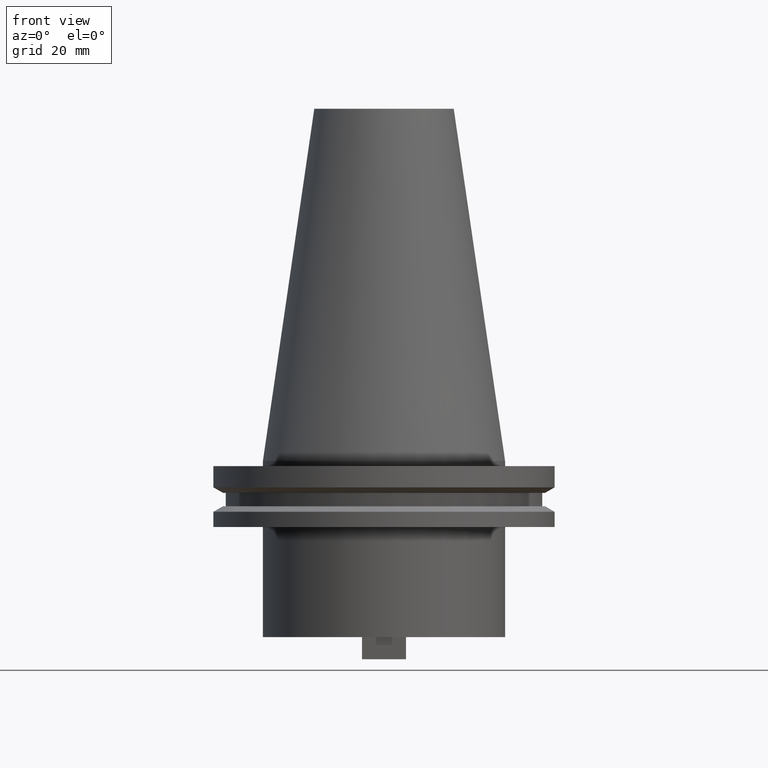
[diagram: clean part render]
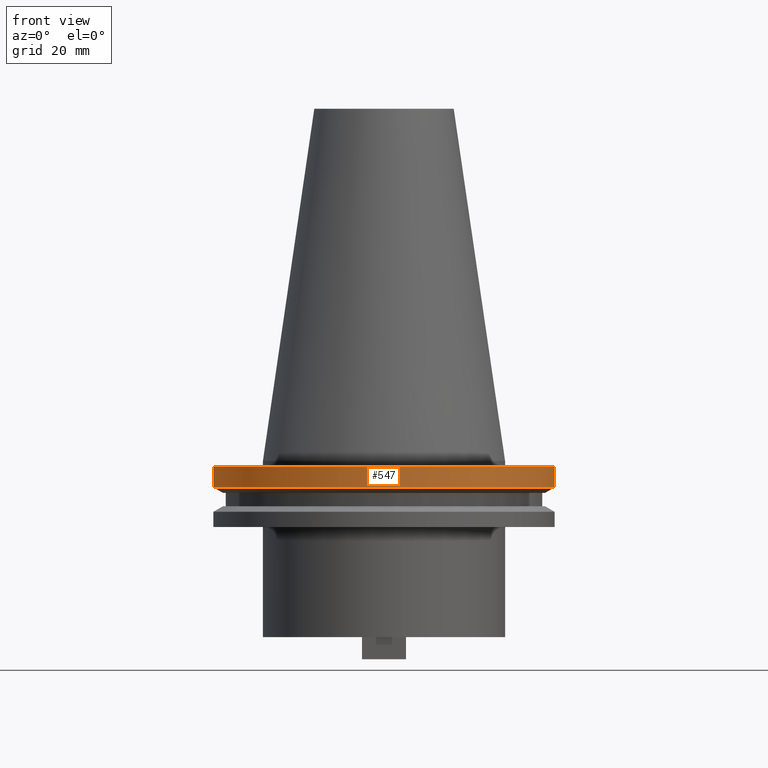
[diagram: same view with one face highlighted and labeled with its STEP entity id]
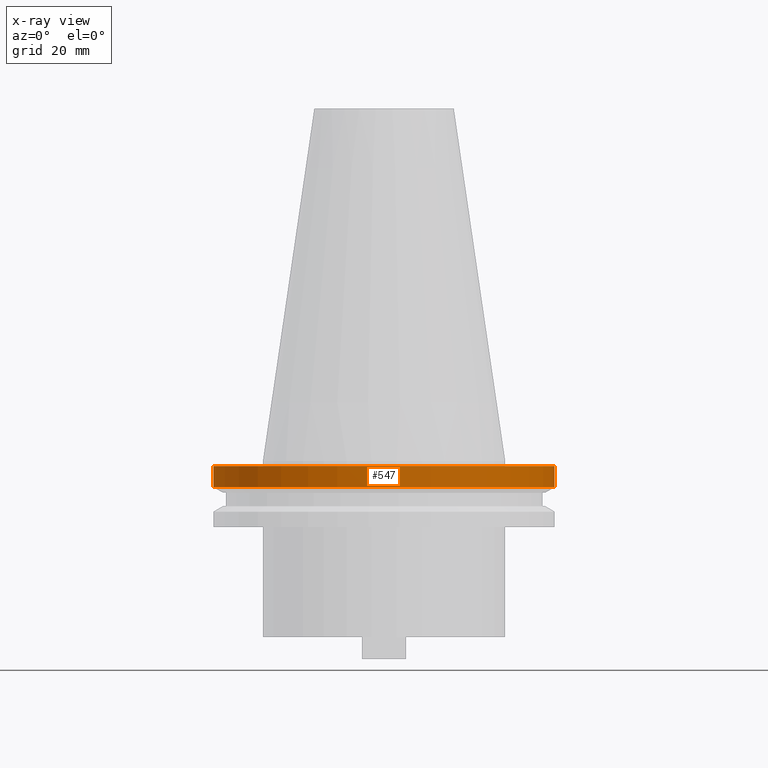
[diagram: x-ray of the same camera — body ghosted, the highlighted face saturated]
A machine part, front view. The second image highlights one B-rep face of the part: STEP entity #547.
The next image is the same camera in x-ray: the body ghosted, the highlighted face saturated — about 0% of this face is hidden behind the body in this view.
In plain terms, the highlighted cylindrical surface (partial cylindrical patch) has radius 49.215 mm, axis along (-0, -0, 1).
Its self-contained STEP definition (entity closure, byte-faithful):
#8 = CARTESIAN_POINT ( 'NONE',  ( 49.21499999999999631, 0.000000000000000000, -1.499999999999987566 ) ) ;
#32 = AXIS2_PLACEMENT_3D ( 'NONE', #974, #666, #341 ) ;
#60 = VERTEX_POINT ( 'NONE', #808 ) ;
#76 = ORIENTED_EDGE ( 'NONE', *, *, #973, .T. ) ;
#129 = CARTESIAN_POINT ( 'NONE',  ( -49.21500000000000341, 6.027099222003699404E-15, -7.602389855251287187 ) ) ;
#132 = LINE ( 'NONE', #442, #462 ) ;
#134 = DIRECTION ( 'NONE',  ( -0.000000000000000000, -0.000000000000000000, 1.000000000000000000 ) ) ;
#139 = EDGE_CURVE ( 'NONE', #583, #445, #258, .T. ) ;
#142 = DIRECTION ( 'NONE',  ( 1.000000000000000000, 0.000000000000000000, 0.000000000000000000 ) ) ;
#191 = DIRECTION ( 'NONE',  ( -0.000000000000000000, -0.000000000000000000, 1.000000000000000000 ) ) ;
#239 = EDGE_CURVE ( 'NONE', #60, #445, #132, .T. ) ;
#252 = EDGE_CURVE ( 'NONE', #664, #583, #744, .T. ) ;
#258 = CIRCLE ( 'NONE', #835, 49.21499999999999631 ) ;
#260 = CARTESIAN_POINT ( 'NONE',  ( -49.21499999999999631, 6.027099222003697826E-15, -1.499999999999987566 ) ) ;
#284 = CARTESIAN_POINT ( 'NONE',  ( 0.000000000000000000, 0.000000000000000000, -7.602389855251287187 ) ) ;
#337 = ORIENTED_EDGE ( 'NONE', *, *, #252, .F. ) ;
#341 = DIRECTION ( 'NONE',  ( 1.000000000000000000, 0.000000000000000000, 0.000000000000000000 ) ) ;
#349 = DIRECTION ( 'NONE',  ( -0.000000000000000000, -0.000000000000000000, 1.000000000000000000 ) ) ;
#364 = CIRCLE ( 'NONE', #400, 49.21500000000000341 ) ;
#373 = DIRECTION ( 'NONE',  ( -0.000000000000000000, -0.000000000000000000, 1.000000000000000000 ) ) ;
#393 = ORIENTED_EDGE ( 'NONE', *, *, #239, .T. ) ;
#400 = AXIS2_PLACEMENT_3D ( 'NONE', #284, #134, #142 ) ;
#434 = CYLINDRICAL_SURFACE ( 'NONE', #32, 49.21499999999999631 ) ;
#442 = CARTESIAN_POINT ( 'NONE',  ( 49.21499999999999631, 0.000000000000000000, 101.5999999999999943 ) ) ;
#445 = VERTEX_POINT ( 'NONE', #8 ) ;
#462 = VECTOR ( 'NONE', #191, 1000.000000000000000 ) ;
#509 = FACE_OUTER_BOUND ( 'NONE', #902, .T. ) ;
#513 = VECTOR ( 'NONE', #373, 1000.000000000000000 ) ;
#547 = ADVANCED_FACE ( 'NONE', ( #509 ), #434, .T. ) ;
#583 = VERTEX_POINT ( 'NONE', #260 ) ;
#594 = CARTESIAN_POINT ( 'NONE',  ( -49.21499999999999631, 6.027099222003697826E-15, 101.5999999999999943 ) ) ;
#636 = ORIENTED_EDGE ( 'NONE', *, *, #139, .F. ) ;
#660 = DIRECTION ( 'NONE',  ( 1.000000000000000000, 0.000000000000000000, 0.000000000000000000 ) ) ;
#664 = VERTEX_POINT ( 'NONE', #129 ) ;
#666 = DIRECTION ( 'NONE',  ( -0.000000000000000000, -0.000000000000000000, 1.000000000000000000 ) ) ;
#737 = CARTESIAN_POINT ( 'NONE',  ( 0.000000000000000000, 0.000000000000000000, -1.499999999999987566 ) ) ;
#744 = LINE ( 'NONE', #594, #513 ) ;
#808 = CARTESIAN_POINT ( 'NONE',  ( 49.21500000000000341, 0.000000000000000000, -7.602389855251287187 ) ) ;
#835 = AXIS2_PLACEMENT_3D ( 'NONE', #737, #349, #660 ) ;
#902 = EDGE_LOOP ( 'NONE', ( #337, #76, #393, #636 ) ) ;
#973 = EDGE_CURVE ( 'NONE', #664, #60, #364, .T. ) ;
#974 = CARTESIAN_POINT ( 'NONE',  ( 0.000000000000000000, 0.000000000000000000, 101.5999999999999943 ) ) ;